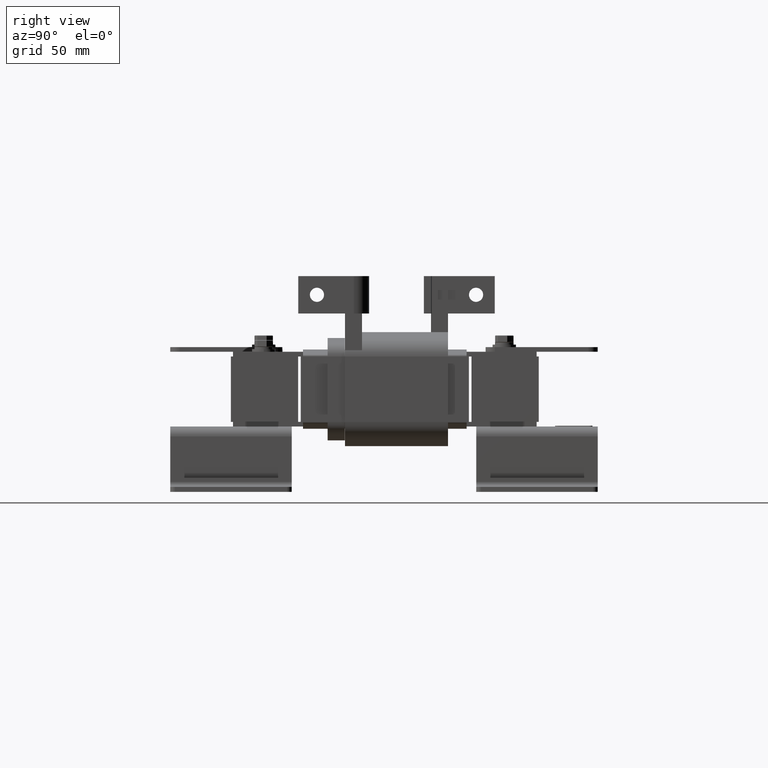
[diagram: clean part render]
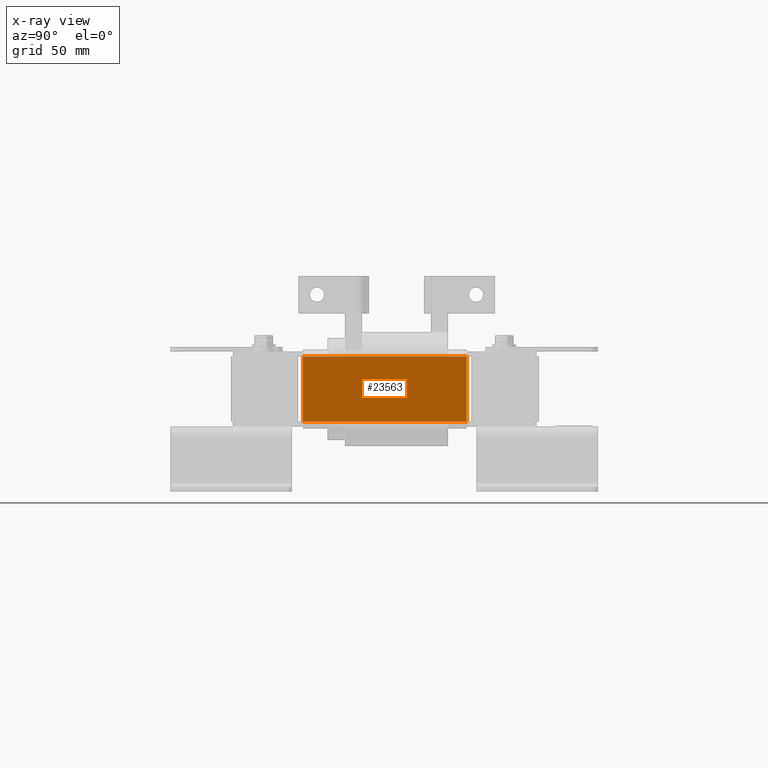
[diagram: x-ray — body ghosted, one internal face saturated and labeled with its STEP entity id]
A machine part, right view, then the same camera in x-ray: the body is ghosted and one INTERNAL B-rep face — a face not visible from any outside direction — is saturated and labeled: STEP entity #23563.
In plain terms, the highlighted planar face has unit normal (1, 0, -0).
Its self-contained STEP definition (entity closure, byte-faithful):
#1274=PLANE('',#25290);
#2247=FACE_OUTER_BOUND('',#3604,.T.);
#3604=EDGE_LOOP('',(#18757,#18758,#18759,#18760));
#5411=LINE('',#38657,#7790);
#5414=LINE('',#38663,#7793);
#5415=LINE('',#38665,#7794);
#5416=LINE('',#38666,#7795);
#7790=VECTOR('',#28995,0.393700787401575);
#7793=VECTOR('',#29000,0.393700787401575);
#7794=VECTOR('',#29001,0.393700787401575);
#7795=VECTOR('',#29002,0.393700787401575);
#10874=VERTEX_POINT('',#38653);
#10876=VERTEX_POINT('',#38656);
#10878=VERTEX_POINT('',#38662);
#10879=VERTEX_POINT('',#38664);
#13713=EDGE_CURVE('',#10874,#10876,#5411,.T.);
#13716=EDGE_CURVE('',#10878,#10874,#5414,.T.);
#13717=EDGE_CURVE('',#10878,#10879,#5415,.T.);
#13718=EDGE_CURVE('',#10876,#10879,#5416,.T.);
#18757=ORIENTED_EDGE('',*,*,#13716,.F.);
#18758=ORIENTED_EDGE('',*,*,#13717,.T.);
#18759=ORIENTED_EDGE('',*,*,#13718,.F.);
#18760=ORIENTED_EDGE('',*,*,#13713,.F.);
#23563=ADVANCED_FACE('',(#2247),#1274,.F.);
#25290=AXIS2_PLACEMENT_3D('',#38661,#28998,#28999);
#28995=DIRECTION('',(0.,0.,1.));
#28998=DIRECTION('center_axis',(1.99815167536586E-16,1.,0.));
#28999=DIRECTION('ref_axis',(-1.,1.99815167536586E-16,0.));
#29000=DIRECTION('',(-1.,1.99815167536586E-16,0.));
#29001=DIRECTION('',(0.,0.,1.));
#29002=DIRECTION('',(1.,-1.99815167536586E-16,0.));
#38653=CARTESIAN_POINT('',(6.99353086378051E-16,1.398,0.));
#38656=CARTESIAN_POINT('',(6.99353086378051E-16,1.398,4.38));
#38657=CARTESIAN_POINT('',(6.99353086378051E-16,1.398,0.));
#38661=CARTESIAN_POINT('Origin',(1.75,1.398,0.));
#38662=CARTESIAN_POINT('',(1.75,1.398,0.));
#38663=CARTESIAN_POINT('',(1.31249999999998,1.398,0.));
#38664=CARTESIAN_POINT('',(1.75,1.398,4.38));
#38665=CARTESIAN_POINT('',(1.75,1.398,0.));
#38666=CARTESIAN_POINT('',(1.31249999999998,1.398,4.38));